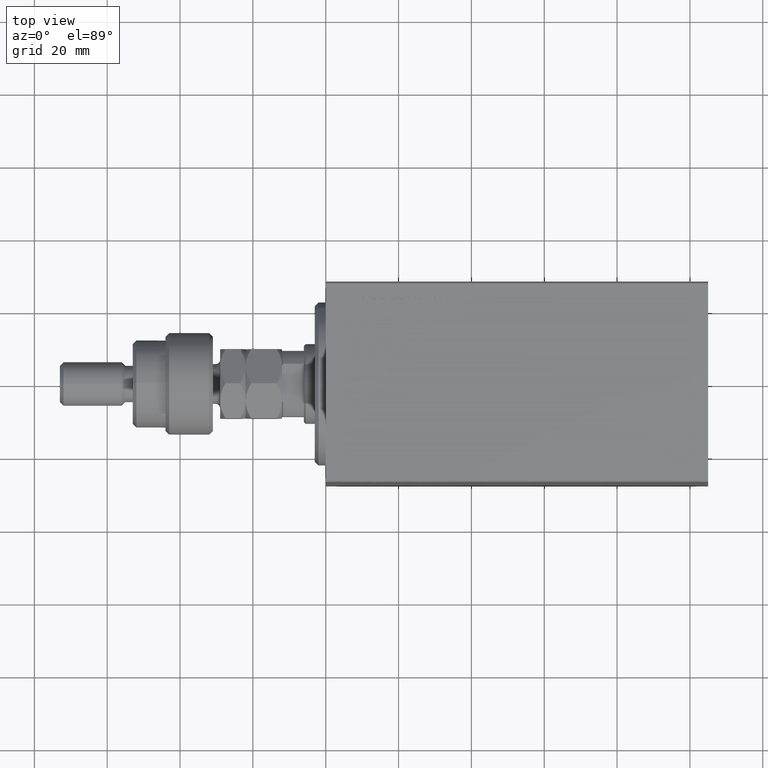
[diagram: clean part render]
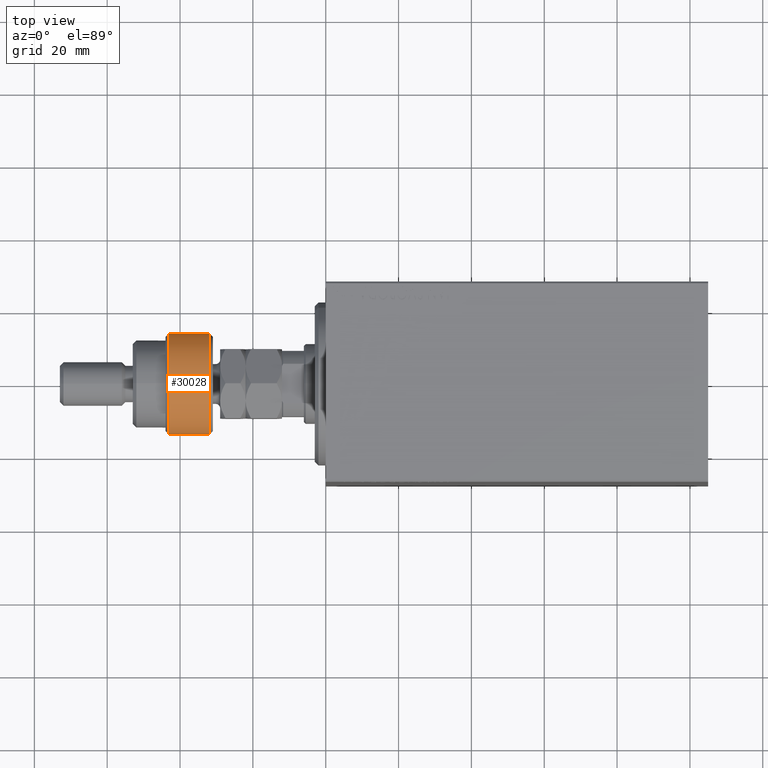
[diagram: same view with one face highlighted and labeled with its STEP entity id]
A machine part, top view. The second image highlights one B-rep face of the part: STEP entity #30028.
In plain terms, the highlighted cylindrical surface (partial cylindrical patch) has radius 14 mm, axis along (1, -0, -0).
Its self-contained STEP definition (entity closure, byte-faithful):
#21 = CARTESIAN_POINT ( 'NONE',  ( -12.64911064067351809, -5.999999999999999112, 12.00000000000002842 ) ) ;
#1776 = CARTESIAN_POINT ( 'NONE',  ( -12.64911064067351809, -5.999999999999999112, 14.50000000000000000 ) ) ;
#2854 = DIRECTION ( 'NONE',  ( -0.000000000000000000, -0.000000000000000000, -1.000000000000000000 ) ) ;
#4221 = ORIENTED_EDGE ( 'NONE', *, *, #15407, .F. ) ;
#4460 = CARTESIAN_POINT ( 'NONE',  ( 14.00000000000000000, 0.000000000000000000, 1.000000000000018208 ) ) ;
#5365 = DIRECTION ( 'NONE',  ( 0.000000000000000000, 0.000000000000000000, -1.000000000000000000 ) ) ;
#5390 = VERTEX_POINT ( 'NONE', #21 ) ;
#5571 = DIRECTION ( 'NONE',  ( -0.000000000000000000, -0.000000000000000000, -1.000000000000000000 ) ) ;
#6825 = ORIENTED_EDGE ( 'NONE', *, *, #27761, .T. ) ;
#6885 = CARTESIAN_POINT ( 'NONE',  ( 0.000000000000000000, 0.000000000000000000, 1.000000000000018208 ) ) ;
#7999 = ORIENTED_EDGE ( 'NONE', *, *, #16789, .T. ) ;
#8255 = CYLINDRICAL_SURFACE ( 'NONE', #34445, 14.00000000000000000 ) ;
#8458 = AXIS2_PLACEMENT_3D ( 'NONE', #8686, #5365, #37786 ) ;
#8686 = CARTESIAN_POINT ( 'NONE',  ( 0.000000000000000000, 0.000000000000000000, 12.00000000000002842 ) ) ;
#9105 = ORIENTED_EDGE ( 'NONE', *, *, #44402, .T. ) ;
#10353 = CARTESIAN_POINT ( 'NONE',  ( -12.64911064067351809, 6.000000000000000000, 12.00000000000002842 ) ) ;
#11801 = AXIS2_PLACEMENT_3D ( 'NONE', #30647, #34428, #41540 ) ;
#11948 = VERTEX_POINT ( 'NONE', #19490 ) ;
#14118 = AXIS2_PLACEMENT_3D ( 'NONE', #6885, #28641, #39522 ) ;
#15407 = EDGE_CURVE ( 'NONE', #31834, #11948, #20847, .T. ) ;
#16789 = EDGE_CURVE ( 'NONE', #31834, #5390, #31107, .T. ) ;
#17491 = VECTOR ( 'NONE', #2854, 1000.000000000000000 ) ;
#19490 = CARTESIAN_POINT ( 'NONE',  ( -12.64911064067351809, 6.000000000000000000, 1.000000000000021760 ) ) ;
#19818 = VERTEX_POINT ( 'NONE', #44036 ) ;
#20847 = LINE ( 'NONE', #35969, #17491 ) ;
#20886 = CIRCLE ( 'NONE', #14118, 14.00000000000000000 ) ;
#23780 = DIRECTION ( 'NONE',  ( -1.000000000000000000, 0.000000000000000000, 0.000000000000000000 ) ) ;
#23858 = VECTOR ( 'NONE', #5571, 1000.000000000000000 ) ;
#26463 = CARTESIAN_POINT ( 'NONE',  ( 0.000000000000000000, 0.000000000000000000, 13.00000000000000000 ) ) ;
#27561 = LINE ( 'NONE', #1776, #23858 ) ;
#27761 = EDGE_CURVE ( 'NONE', #19818, #30050, #38984, .T. ) ;
#28641 = DIRECTION ( 'NONE',  ( -0.000000000000000000, -0.000000000000000000, 1.000000000000000000 ) ) ;
#30028 = ADVANCED_FACE ( 'NONE', ( #36887 ), #8255, .T. ) ;
#30050 = VERTEX_POINT ( 'NONE', #4460 ) ;
#30647 = CARTESIAN_POINT ( 'NONE',  ( 0.000000000000000000, 0.000000000000000000, 1.000000000000018208 ) ) ;
#31107 = CIRCLE ( 'NONE', #8458, 14.00000000000000000 ) ;
#31616 = EDGE_CURVE ( 'NONE', #30050, #11948, #20886, .T. ) ;
#31834 = VERTEX_POINT ( 'NONE', #10353 ) ;
#33089 = DIRECTION ( 'NONE',  ( -0.000000000000000000, -0.000000000000000000, -1.000000000000000000 ) ) ;
#34428 = DIRECTION ( 'NONE',  ( -0.000000000000000000, -0.000000000000000000, 1.000000000000000000 ) ) ;
#34445 = AXIS2_PLACEMENT_3D ( 'NONE', #26463, #33089, #23780 ) ;
#35969 = CARTESIAN_POINT ( 'NONE',  ( -12.64911064067351809, 6.000000000000000000, 14.50000000000000000 ) ) ;
#36887 = FACE_OUTER_BOUND ( 'NONE', #39070, .T. ) ;
#37786 = DIRECTION ( 'NONE',  ( 1.000000000000000000, 0.000000000000000000, 0.000000000000000000 ) ) ;
#38984 = CIRCLE ( 'NONE', #11801, 14.00000000000000000 ) ;
#39070 = EDGE_LOOP ( 'NONE', ( #4221, #7999, #9105, #6825, #44485 ) ) ;
#39522 = DIRECTION ( 'NONE',  ( 1.000000000000000000, 0.000000000000000000, 0.000000000000000000 ) ) ;
#41540 = DIRECTION ( 'NONE',  ( 1.000000000000000000, 0.000000000000000000, 0.000000000000000000 ) ) ;
#44036 = CARTESIAN_POINT ( 'NONE',  ( -12.64911064067351809, -5.999999999999999112, 1.000000000000021760 ) ) ;
#44402 = EDGE_CURVE ( 'NONE', #5390, #19818, #27561, .T. ) ;
#44485 = ORIENTED_EDGE ( 'NONE', *, *, #31616, .T. ) ;